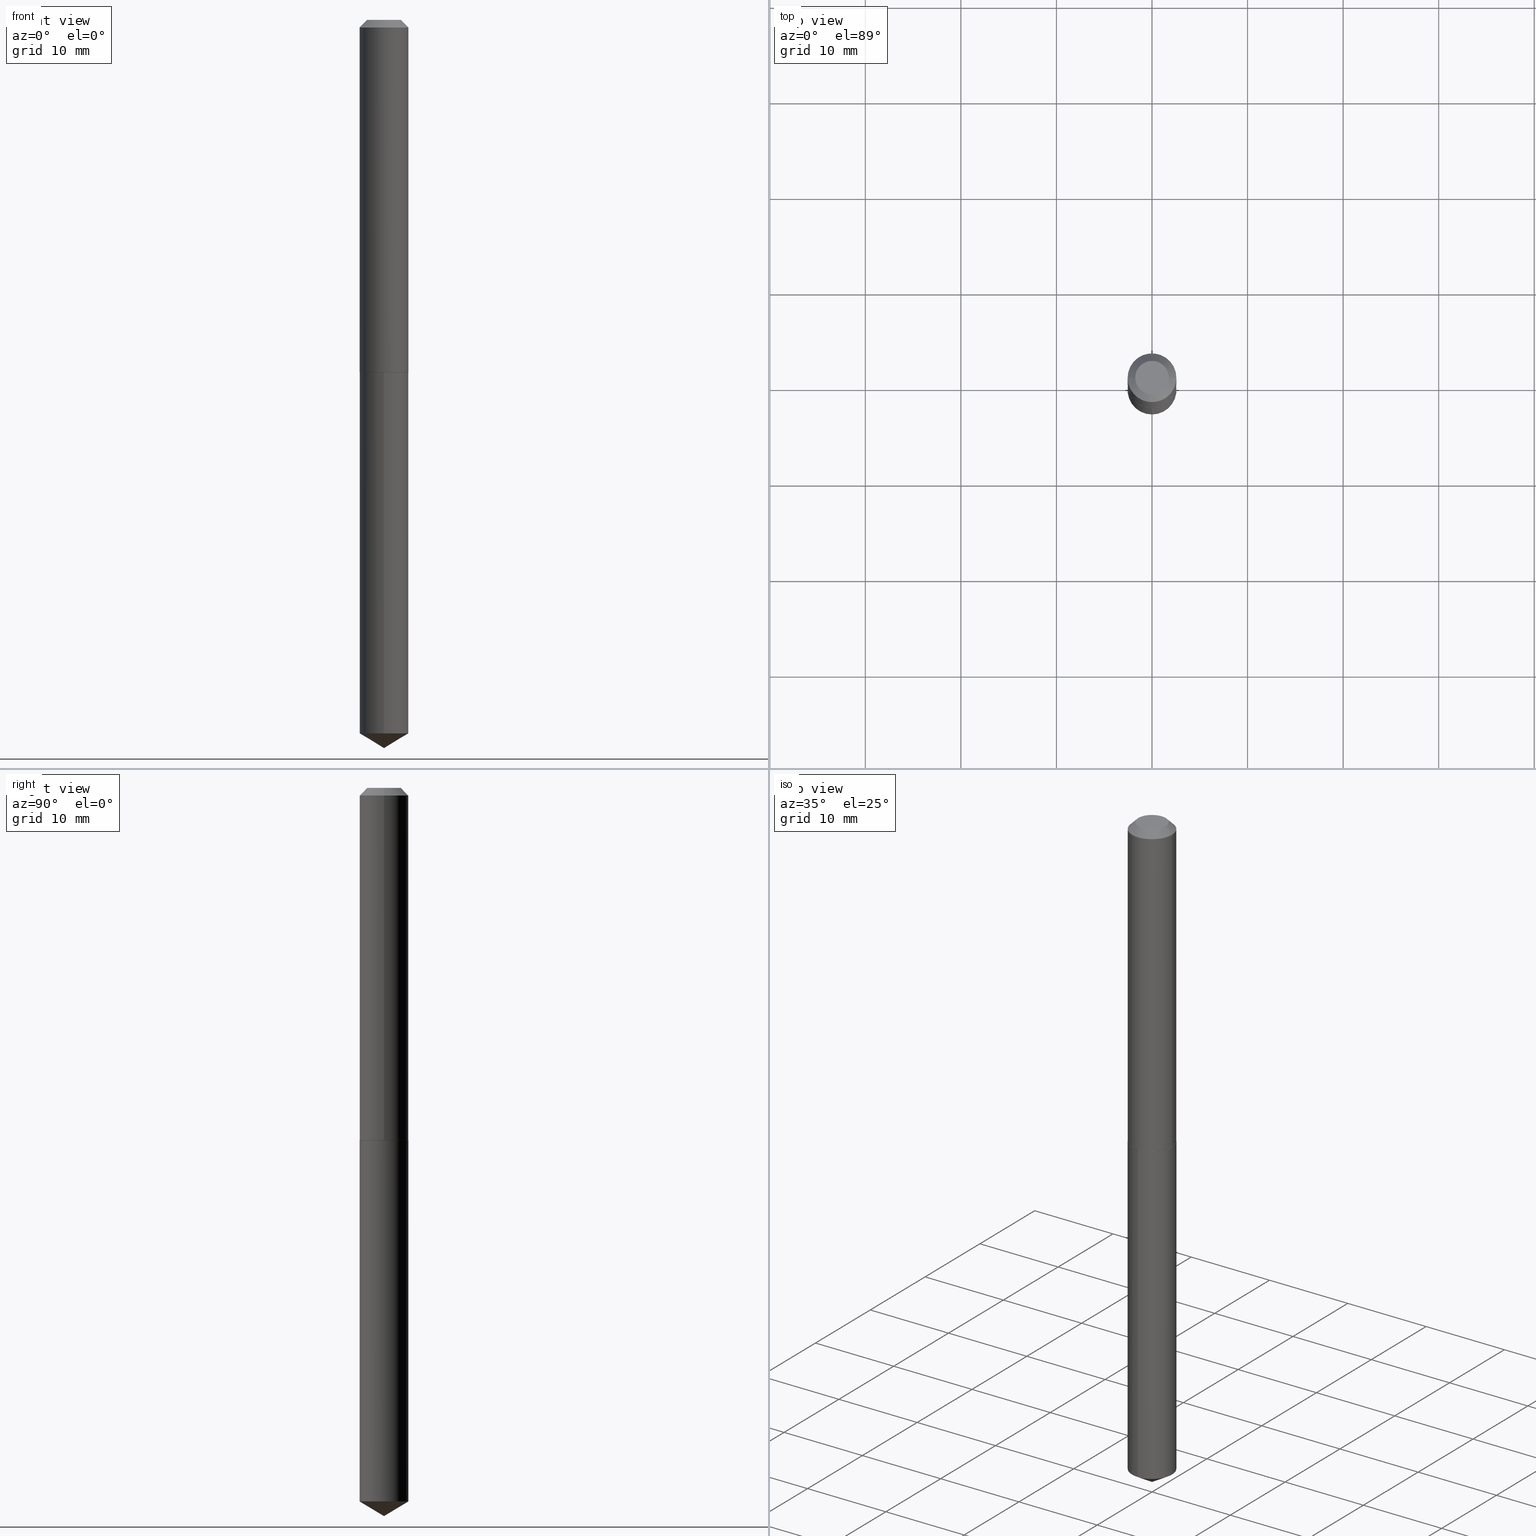
[diagram: canonical four-view strip — front | top / right | iso, engineering-drawing reading convention]
A machine part, canonical four-view strip (front | top / right | iso — engineering-drawing reading convention). The complete STEP part file that produces these views, byte-faithful:
ISO-10303-21;
HEADER;
FILE_DESCRIPTION (( 'STEP AP203' ),
    '1' );
FILE_NAME ('57161.STEP',
    '2024-04-22T23:10:26',
    ( '' ),
    ( '' ),
    'SwSTEP 2.0',
    'SolidWorks 2023',
    '' );
FILE_SCHEMA (( 'CONFIG_CONTROL_DESIGN' ));
ENDSEC;

DATA;
#1 = CARTESIAN_POINT ( 'NONE',  ( 7.642090019328598283E-31, -1.091087918388489651E-16, -0.03125000000000019429 ) ) ;
#2 = ORIENTED_EDGE ( 'NONE', *, *, #60, .F. ) ;
#3 = ADVANCED_FACE ( 'NONE', ( #107 ), #25, .T. ) ;
#4 = DIRECTION ( 'NONE',  ( -2.445453720177075881E-29, 3.491502942865330851E-15, 1.000000000000000000 ) ) ;
#5 = ORIENTED_EDGE ( 'NONE', *, *, #60, .T. ) ;
#6 = UNCERTAINTY_MEASURE_WITH_UNIT (LENGTH_MEASURE( 1.000000000000000082E-05 ), #177, 'distance_accuracy_value', 'NONE');
#7 = VECTOR ( 'NONE', #22, 39.37007874015748143 ) ;
#8 = CARTESIAN_POINT ( 'NONE',  ( 0.1005000000000001587, -5.766181431099454268E-15, -1.450500000000000345 ) ) ;
#9 = ORIENTED_EDGE ( 'NONE', *, *, #220, .T. ) ;
#10 = CARTESIAN_POINT ( 'NONE',  ( 3.547152503371541091E-29, -5.064393681991983801E-15, -1.450500000000000345 ) ) ;
#11 = ADVANCED_FACE ( 'NONE', ( #45 ), #167, .F. ) ;
#12 = ORIENTED_EDGE ( 'NONE', *, *, #103, .F. ) ;
#13 = CARTESIAN_POINT ( 'NONE',  ( 0.1005000000000000060, -7.985888406148880235E-16, -0.03125000000000019429 ) ) ;
#14 = ORIENTED_EDGE ( 'NONE', *, *, #281, .F. ) ;
#15 = PERSON_AND_ORGANIZATION ( #141, #201 ) ;
#16 = DIRECTION ( 'NONE',  ( 2.445453720177075881E-29, -3.491502942865330457E-15, -1.000000000000000000 ) ) ;
#17 = CIRCLE ( 'NONE', #73, 0.1005000000000000060 ) ;
#18 = CC_DESIGN_APPROVAL ( #204, ( #105 ) ) ;
#19 = DIRECTION ( 'NONE',  ( 2.438088387897960049E-29, -3.491481338843145188E-15, -1.000000000000000000 ) ) ;
#20 = DIRECTION ( 'NONE',  ( -0.7071067811862336017, 7.493145998869219778E-15, 0.7071067811868614328 ) ) ;
#21 = ORIENTED_EDGE ( 'NONE', *, *, #182, .T. ) ;
#22 = DIRECTION ( 'NONE',  ( -2.445453720177075881E-29, 3.491502942865330457E-15, 1.000000000000000000 ) ) ;
#23 = ORIENTED_EDGE ( 'NONE', *, *, #274, .F. ) ;
#24 = DIRECTION ( 'NONE',  ( -2.445468806185136597E-29, 3.491481338843145583E-15, 1.000000000000000000 ) ) ;
#25 = CONICAL_SURFACE ( 'NONE', #179, 65.52281426576865897, 1.029744258676656088 ) ;
#26 = CARTESIAN_POINT ( 'NONE',  ( -0.1005000000000001587, -4.350298232553081297E-15, -1.450500000000000345 ) ) ;
#27 = EDGE_CURVE ( 'NONE', #112, #256, #186, .T. ) ;
#28 = CALENDAR_DATE ( 2024, 22, 4 ) ;
#29 = DIRECTION ( 'NONE',  ( 1.000000000000000000, 0.000000000000000000, 0.000000000000000000 ) ) ;
#30 = PERSON_AND_ORGANIZATION_ROLE ( 'classification_officer' ) ;
#31 = EDGE_CURVE ( 'NONE', #172, #35, #47, .T. ) ;
#32 = ADVANCED_FACE ( 'NONE', ( #278 ), #367, .T. ) ;
#33 = CALENDAR_DATE ( 2024, 22, 4 ) ;
#34 = DIRECTION ( 'NONE',  ( 1.000000000000000000, -6.982962677686269077E-15, 0.000000000000000000 ) ) ;
#35 = VERTEX_POINT ( 'NONE', #368 ) ;
#36 = DIRECTION ( 'NONE',  ( -2.445468806185136597E-29, 3.491481338843145583E-15, 1.000000000000000000 ) ) ;
#37 = DIRECTION ( 'NONE',  ( -2.445468806185136877E-29, 3.491481338843145188E-15, 1.000000000000000000 ) ) ;
#38 = CIRCLE ( 'NONE', #338, 0.06925000000000000600 ) ;
#39 = LINE ( 'NONE', #135, #221 ) ;
#40 = ORIENTED_EDGE ( 'NONE', *, *, #195, .F. ) ;
#41 = DIRECTION ( 'NONE',  ( 1.000000000000000000, -6.982962677686266711E-15, 4.876176775795935793E-29 ) ) ;
#42 = ORIENTED_EDGE ( 'NONE', *, *, #374, .T. ) ;
#43 = APPLICATION_CONTEXT ( 'configuration controlled 3d designs of mechanical parts and assemblies' ) ;
#44 = CARTESIAN_POINT ( 'NONE',  ( -8.894132246845359773E-28, 1.269862683009398457E-13, 36.37007874015748143 ) ) ;
#45 = FACE_OUTER_BOUND ( 'NONE', #237, .T. ) ;
#46 = DIRECTION ( 'NONE',  ( 1.000000000000000000, -6.982962677686263555E-15, 0.000000000000000000 ) ) ;
#47 = CIRCLE ( 'NONE', #275, 0.1005000000000001587 ) ;
#48 = LOCAL_TIME ( 19, 10, 26.00000000000000000, #108 ) ;
#49 = EDGE_LOOP ( 'NONE', ( #110, #137 ) ) ;
#50 = CALENDAR_DATE ( 2024, 22, 4 ) ;
#51 = FACE_OUTER_BOUND ( 'NONE', #319, .T. ) ;
#52 = EDGE_LOOP ( 'NONE', ( #170, #376, #116, #5 ) ) ;
#53 = PERSON_AND_ORGANIZATION_ROLE ( 'creator' ) ;
#54 = CARTESIAN_POINT ( 'NONE',  ( 3.547152503371541091E-29, -5.064393681991983801E-15, -1.450500000000000345 ) ) ;
#55 = DATE_TIME_ROLE ( 'creation_date' ) ;
#56 = DIRECTION ( 'NONE',  ( -2.438088387897960049E-29, 3.491481338843145188E-15, 1.000000000000000000 ) ) ;
#57 = ADVANCED_FACE ( 'NONE', ( #106 ), #309, .T. ) ;
#58 = AXIS2_PLACEMENT_3D ( 'NONE', #255, #190, #102 ) ;
#59 = ADVANCED_FACE ( 'NONE', ( #152 ), #235, .T. ) ;
#60 = EDGE_CURVE ( 'NONE', #265, #163, #17, .T. ) ;
#61 = APPROVAL_PERSON_ORGANIZATION ( #117, #204, #205 ) ;
#62 = EDGE_CURVE ( 'NONE', #334, #256, #136, .T. ) ;
#63 = MECHANICAL_CONTEXT ( 'NONE', #43, 'mechanical' ) ;
#64 = CC_DESIGN_PERSON_AND_ORGANIZATION_ASSIGNMENT ( #197, #325, ( #105 ) ) ;
#65 = CIRCLE ( 'NONE', #299, 0.1005000000000000060 ) ;
#66 = CIRCLE ( 'NONE', #304, 0.1000000000000004358 ) ;
#67 = DIRECTION ( 'NONE',  ( -1.000000000000000000, 6.982962677686266711E-15, 0.000000000000000000 ) ) ;
#68 = EDGE_LOOP ( 'NONE', ( #344, #336, #288 ) ) ;
#69 = CARTESIAN_POINT ( 'NONE',  ( 0.1005000000000001587, -5.766181431099454268E-15, -1.450500000000000345 ) ) ;
#70 = VERTEX_POINT ( 'NONE', #187 ) ;
#71 = CARTESIAN_POINT ( 'NONE',  ( 3.548375237774633332E-29, -5.066139422661404516E-15, -1.451000000000000068 ) ) ;
#72 = ORIENTED_EDGE ( 'NONE', *, *, #359, .F. ) ;
#73 = AXIS2_PLACEMENT_3D ( 'NONE', #223, #246, #228 ) ;
#74 = CARTESIAN_POINT ( 'NONE',  ( -0.1005000000000000060, 5.926789572686209720E-16, -0.03125000000000019429 ) ) ;
#75 = ORIENTED_EDGE ( 'NONE', *, *, #103, .T. ) ;
#76 = CALENDAR_DATE ( 2024, 22, 4 ) ;
#77 = CARTESIAN_POINT ( 'NONE',  ( -0.06925000000000000600, 5.381245613491975063E-16, 1.224646799111634847E-19 ) ) ;
#78 = EDGE_LOOP ( 'NONE', ( #86, #373 ) ) ;
#79 = COORDINATED_UNIVERSAL_TIME_OFFSET ( 5, 0, .BEHIND. ) ;
#80 = CARTESIAN_POINT ( 'NONE',  ( 3.548375237774633332E-29, -5.066139422661404516E-15, -1.451000000000000068 ) ) ;
#81 = CARTESIAN_POINT ( 'NONE',  ( 3.548375237774633332E-29, -5.066139422661404516E-15, -1.451000000000000068 ) ) ;
#82 = LINE ( 'NONE', #295, #7 ) ;
#83 = CIRCLE ( 'NONE', #383, 0.1000000000000004358 ) ;
#84 = ORIENTED_EDGE ( 'NONE', *, *, #358, .F. ) ;
#85 = CARTESIAN_POINT ( 'NONE',  ( 7.188710678299985693E-29, -1.026363786589134898E-14, -2.939613507787730562 ) ) ;
#86 = ORIENTED_EDGE ( 'NONE', *, *, #359, .T. ) ;
#87 = ADVANCED_FACE ( 'NONE', ( #130 ), #241, .T. ) ;
#88 = CARTESIAN_POINT ( 'NONE',  ( 3.548375237774633892E-29, -5.066139422661406094E-15, -1.451000000000000512 ) ) ;
#89 = PLANE ( 'NONE',  #215 ) ;
#90 = AXIS2_PLACEMENT_3D ( 'NONE', #315, #56, #267 ) ;
#91 = APPROVAL_PERSON_ORGANIZATION ( #232, #209, #297 ) ;
#92 = PERSON_AND_ORGANIZATION_ROLE ( 'design_owner' ) ;
#93 = APPROVAL_STATUS ( 'not_yet_approved' ) ;
#94 = ADVANCED_FACE ( 'NONE', ( #96 ), #337, .T. ) ;
#95 = APPROVAL ( #93, 'UNSPECIFIED' ) ;
#96 = FACE_OUTER_BOUND ( 'NONE', #366, .T. ) ;
#97 = CIRCLE ( 'NONE', #138, 0.1005000000000000060 ) ;
#98 = CC_DESIGN_APPROVAL ( #95, ( #176 ) ) ;
#99 = DIRECTION ( 'NONE',  ( -2.445468806185136597E-29, 3.491481338843145583E-15, 1.000000000000000000 ) ) ;
#100 = ADVANCED_FACE ( 'NONE', ( #341 ), #332, .T. ) ;
#101 = CARTESIAN_POINT ( 'NONE',  ( -7.017877491074343767E-16, -0.1005000000000050853, -1.450999999999999845 ) ) ;
#102 = DIRECTION ( 'NONE',  ( 1.000000000000000000, -6.982962677686266711E-15, 0.000000000000000000 ) ) ;
#103 = EDGE_CURVE ( 'NONE', #163, #265, #326, .T. ) ;
#104 = DATE_AND_TIME ( #50, #276 ) ;
#105 = PRODUCT_DEFINITION_FORMATION_WITH_SPECIFIED_SOURCE ( 'ANY', '', #214, .NOT_KNOWN. ) ;
#106 = FACE_OUTER_BOUND ( 'NONE', #351, .T. ) ;
#107 = FACE_OUTER_BOUND ( 'NONE', #193, .T. ) ;
#108 = COORDINATED_UNIVERSAL_TIME_OFFSET ( 5, 0, .BEHIND. ) ;
#109 = DIRECTION ( 'NONE',  ( -2.445468806185136597E-29, 3.491481338843145583E-15, 1.000000000000000000 ) ) ;
#110 = ORIENTED_EDGE ( 'NONE', *, *, #381, .F. ) ;
#111 = DIRECTION ( 'NONE',  ( -2.445453720177075881E-29, 3.491502942865330851E-15, 1.000000000000000000 ) ) ;
#112 = VERTEX_POINT ( 'NONE', #308 ) ;
#113 = CALENDAR_DATE ( 2024, 22, 4 ) ;
#114 = DIRECTION ( 'NONE',  ( -2.445468806185136597E-29, 3.491481338843145583E-15, 1.000000000000000000 ) ) ;
#115 = LOCAL_TIME ( 19, 10, 26.00000000000000000, #273 ) ;
#116 = ORIENTED_EDGE ( 'NONE', *, *, #213, .T. ) ;
#117 = PERSON_AND_ORGANIZATION ( #141, #201 ) ;
#118 = DIRECTION ( 'NONE',  ( -6.982962677686265922E-15, -1.000000000000000000, 3.468864327941581987E-15 ) ) ;
#119 = APPROVAL_ROLE ( '' ) ;
#120 = DIRECTION ( 'NONE',  ( -5.985567269335949168E-15, -0.8571673007021112234, 0.5150380749100558209 ) ) ;
#121 = VECTOR ( 'NONE', #375, 39.37007874015748143 ) ;
#122 =( GEOMETRIC_REPRESENTATION_CONTEXT ( 3 ) GLOBAL_UNCERTAINTY_ASSIGNED_CONTEXT ( ( #6 ) ) GLOBAL_UNIT_ASSIGNED_CONTEXT ( ( #177, #212, #150 ) ) REPRESENTATION_CONTEXT ( 'NONE', 'WORKASPACE' ) );
#123 = CC_DESIGN_PERSON_AND_ORGANIZATION_ASSIGNMENT ( #328, #30, ( #176 ) ) ;
#124 = AXIS2_PLACEMENT_3D ( 'NONE', #44, #270, #118 ) ;
#125 = CIRCLE ( 'NONE', #384, 0.1005000000000000060 ) ;
#126 = ORIENTED_EDGE ( 'NONE', *, *, #329, .T. ) ;
#127 = ADVANCED_FACE ( 'NONE', ( #279 ), #331, .T. ) ;
#128 = DIRECTION ( 'NONE',  ( 1.000000000000000000, -6.982962677686269077E-15, 0.000000000000000000 ) ) ;
#129 = VERTEX_POINT ( 'NONE', #306 ) ;
#130 = FACE_OUTER_BOUND ( 'NONE', #284, .T. ) ;
#131 = ORIENTED_EDGE ( 'NONE', *, *, #245, .T. ) ;
#132 = AXIS2_PLACEMENT_3D ( 'NONE', #140, #165, #233 ) ;
#133 = DIRECTION ( 'NONE',  ( -2.445468806185136597E-29, 3.491481338843145583E-15, 1.000000000000000000 ) ) ;
#134 = ORIENTED_EDGE ( 'NONE', *, *, #348, .T. ) ;
#135 = CARTESIAN_POINT ( 'NONE',  ( -0.1005000000000000893, 7.140954494389013210E-16, -4.943529765706185016E-30 ) ) ;
#136 = LINE ( 'NONE', #101, #388 ) ;
#137 = ORIENTED_EDGE ( 'NONE', *, *, #260, .F. ) ;
#138 = AXIS2_PLACEMENT_3D ( 'NONE', #85, #171, #143 ) ;
#139 = PERSON_AND_ORGANIZATION ( #141, #201 ) ;
#140 = CARTESIAN_POINT ( 'NONE',  ( -2.994835545909338814E-48, 4.275831445896991422E-34, 1.224646799147358199E-19 ) ) ;
#141 = PERSON ( 'UNSPECIFIED', 'UNSPECIFIED', 'UNSPECIFIED', ('UNSPECIFIED'), ('UNSPECIFIED'), ('UNSPECIFIED') ) ;
#142 = DIRECTION ( 'NONE',  ( -1.000000000000000000, 6.982962677686265922E-15, -4.876176775795935793E-29 ) ) ;
#143 = DIRECTION ( 'NONE',  ( -6.982962677686265922E-15, -1.000000000000000000, 5.436513420227388995E-15 ) ) ;
#144 = EDGE_LOOP ( 'NONE', ( #146, #229, #75, #155 ) ) ;
#145 = DIRECTION ( 'NONE',  ( 1.000000000000000000, -6.982962677686263555E-15, 0.000000000000000000 ) ) ;
#146 = ORIENTED_EDGE ( 'NONE', *, *, #352, .F. ) ;
#147 = DIRECTION ( 'NONE',  ( -2.445453720177075881E-29, 3.491502942865330851E-15, 1.000000000000000000 ) ) ;
#148 = DATE_TIME_ROLE ( 'classification_date' ) ;
#149 = AXIS2_PLACEMENT_3D ( 'NONE', #305, #133, #219 ) ;
#150 =( NAMED_UNIT ( * ) SI_UNIT ( $, .STERADIAN. ) SOLID_ANGLE_UNIT ( ) );
#151 = CC_DESIGN_DATE_AND_TIME_ASSIGNMENT ( #183, #148, ( #176 ) ) ;
#152 = FACE_OUTER_BOUND ( 'NONE', #52, .T. ) ;
#153 = ORIENTED_EDGE ( 'NONE', *, *, #27, .F. ) ;
#154 = CARTESIAN_POINT ( 'NONE',  ( 3.547152503371541091E-29, -5.064393681991983801E-15, -1.450500000000000345 ) ) ;
#155 = ORIENTED_EDGE ( 'NONE', *, *, #213, .F. ) ;
#156 = CC_DESIGN_PERSON_AND_ORGANIZATION_ASSIGNMENT ( #357, #92, ( #214 ) ) ;
#157 = LINE ( 'NONE', #13, #257 ) ;
#158 = AXIS2_PLACEMENT_3D ( 'NONE', #1, #189, #67 ) ;
#159 = CIRCLE ( 'NONE', #132, 0.06925000000000000600 ) ;
#160 = DIRECTION ( 'NONE',  ( -6.982962677686265922E-15, -1.000000000000000000, 2.718256710113694497E-15 ) ) ;
#161 = DIRECTION ( 'NONE',  ( -2.445453720177075881E-29, 3.491502942865330851E-15, 1.000000000000000000 ) ) ;
#162 = ADVANCED_BREP_SHAPE_REPRESENTATION ( '57161', ( #181, #166, #339 ), #122 ) ;
#163 = VERTEX_POINT ( 'NONE', #365 ) ;
#164 = PERSON_AND_ORGANIZATION_ROLE ( 'creator' ) ;
#165 = DIRECTION ( 'NONE',  ( -2.445468806185136597E-29, 3.491481338843145583E-15, 1.000000000000000000 ) ) ;
#166 = MANIFOLD_SOLID_BREP ( 'Body-Move/Copy2[2]', #389 ) ;
#167 = PLANE ( 'NONE',  #175 ) ;
#168 = AXIS2_PLACEMENT_3D ( 'NONE', #206, #147, #321 ) ;
#169 = DIRECTION ( 'NONE',  ( -6.982962677686265922E-15, -1.000000000000000000, 5.436513420227388995E-15 ) ) ;
#170 = ORIENTED_EDGE ( 'NONE', *, *, #185, .F. ) ;
#171 = DIRECTION ( 'NONE',  ( -2.445453720177075881E-29, 3.491502942865330851E-15, 1.000000000000000000 ) ) ;
#172 = VERTEX_POINT ( 'NONE', #69 ) ;
#173 = CARTESIAN_POINT ( 'NONE',  ( -7.017877491073979905E-16, -0.1005000000000102756, -2.939613507787730118 ) ) ;
#174 = CARTESIAN_POINT ( 'NONE',  ( 3.548375237774633892E-29, -5.066139422661406094E-15, -1.451000000000000512 ) ) ;
#175 = AXIS2_PLACEMENT_3D ( 'NONE', #290, #19, #142 ) ;
#176 = SECURITY_CLASSIFICATION ( '', '', #239 ) ;
#177 =( CONVERSION_BASED_UNIT ( 'INCH', #361 ) LENGTH_UNIT ( ) NAMED_UNIT ( #198 ) );
#178 = PERSON_AND_ORGANIZATION ( #141, #201 ) ;
#179 = AXIS2_PLACEMENT_3D ( 'NONE', #314, #342, #262 ) ;
#180 = AXIS2_PLACEMENT_3D ( 'NONE', #54, #109, #264 ) ;
#181 = MANIFOLD_SOLID_BREP ( 'Body-Move/Copy2[1]', #364 ) ;
#182 = EDGE_CURVE ( 'NONE', #35, #265, #39, .T. ) ;
#183 = DATE_AND_TIME ( #28, #360 ) ;
#184 = DIRECTION ( 'NONE',  ( 0.000000000000000000, 0.000000000000000000, 1.000000000000000000 ) ) ;
#185 = EDGE_CURVE ( 'NONE', #347, #163, #157, .T. ) ;
#186 = CIRCLE ( 'NONE', #243, 0.1005000000000000060 ) ;
#187 = CARTESIAN_POINT ( 'NONE',  ( 0.1000000000000004358, -5.764435690430035131E-15, -1.451000000000000512 ) ) ;
#188 = CC_DESIGN_PERSON_AND_ORGANIZATION_ASSIGNMENT ( #15, #164, ( #242 ) ) ;
#189 = DIRECTION ( 'NONE',  ( 2.445468806185136597E-29, -3.491481338843145583E-15, -1.000000000000000000 ) ) ;
#190 = DIRECTION ( 'NONE',  ( -2.445468806185136597E-29, 3.491481338843145583E-15, 1.000000000000000000 ) ) ;
#191 = ORIENTED_EDGE ( 'NONE', *, *, #195, .T. ) ;
#192 = DIRECTION ( 'NONE',  ( -0.7071067811865453523, 2.468850131082234184E-15, -0.7071067811865496822 ) ) ;
#193 = EDGE_LOOP ( 'NONE', ( #296, #131, #14 ) ) ;
#194 = DIRECTION ( 'NONE',  ( -2.445468806185136597E-29, 3.491481338843145583E-15, 1.000000000000000000 ) ) ;
#195 = EDGE_CURVE ( 'NONE', #70, #172, #285, .T. ) ;
#196 = VERTEX_POINT ( 'NONE', #370 ) ;
#197 = PERSON_AND_ORGANIZATION ( #141, #201 ) ;
#198 = DIMENSIONAL_EXPONENTS ( 1.000000000000000000, 0.000000000000000000, 0.000000000000000000, 0.000000000000000000, 0.000000000000000000, 0.000000000000000000, 0.000000000000000000 ) ;
#199 = DIRECTION ( 'NONE',  ( -6.982962677686265922E-15, -1.000000000000000000, 2.718256710113694497E-15 ) ) ;
#200 = DIRECTION ( 'NONE',  ( -6.982962677686265922E-15, -1.000000000000000000, 2.718256710113694497E-15 ) ) ;
#201 = ORGANIZATION ( 'UNSPECIFIED', 'UNSPECIFIED', '' ) ;
#202 = CARTESIAN_POINT ( 'NONE',  ( 7.336361160531227643E-29, -1.047450882859599098E-14, -3.000000000000000444 ) ) ;
#203 = VERTEX_POINT ( 'NONE', #77 ) ;
#204 = APPROVAL ( #227, 'UNSPECIFIED' ) ;
#205 = APPROVAL_ROLE ( '' ) ;
#206 = CARTESIAN_POINT ( 'NONE',  ( 3.548375237774633332E-29, -5.066139422661404516E-15, -1.451000000000000068 ) ) ;
#207 = ORIENTED_EDGE ( 'NONE', *, *, #62, .F. ) ;
#208 = VECTOR ( 'NONE', #289, 39.37007874015748854 ) ;
#209 = APPROVAL ( #266, 'UNSPECIFIED' ) ;
#210 = APPROVAL_DATE_TIME ( #302, #95 ) ;
#211 = APPLICATION_PROTOCOL_DEFINITION ( 'international standard', 'config_control_design', 1994, #369 ) ;
#212 =( NAMED_UNIT ( * ) PLANE_ANGLE_UNIT ( ) SI_UNIT ( $, .RADIAN. ) );
#213 = EDGE_CURVE ( 'NONE', #203, #265, #253, .T. ) ;
#214 = PRODUCT ( '57161', '57161', '', ( #63 ) ) ;
#215 = AXIS2_PLACEMENT_3D ( 'NONE', #269, #16, #236 ) ;
#216 = COORDINATED_UNIVERSAL_TIME_OFFSET ( 5, 0, .BEHIND. ) ;
#217 = CARTESIAN_POINT ( 'NONE',  ( 0.000000000000000000, 0.000000000000000000, 0.000000000000000000 ) ) ;
#218 = ORIENTED_EDGE ( 'NONE', *, *, #374, .F. ) ;
#219 = DIRECTION ( 'NONE',  ( 1.000000000000000000, -6.982962677686266711E-15, 4.876176775795935793E-29 ) ) ;
#220 = EDGE_CURVE ( 'NONE', #334, #129, #65, .T. ) ;
#221 = VECTOR ( 'NONE', #37, 39.37007874015748143 ) ;
#222 = CARTESIAN_POINT ( 'NONE',  ( 0.000000000000000000, 0.000000000000000000, 0.000000000000000000 ) ) ;
#223 = CARTESIAN_POINT ( 'NONE',  ( 7.642090019328598283E-31, -1.091087918388489651E-16, -0.03125000000000019429 ) ) ;
#224 = ORIENTED_EDGE ( 'NONE', *, *, #182, .F. ) ;
#225 = DIRECTION ( 'NONE',  ( 2.445468806185136597E-29, -3.491481338843145583E-15, -1.000000000000000000 ) ) ;
#226 = AXIS2_PLACEMENT_3D ( 'NONE', #154, #194, #363 ) ;
#227 = APPROVAL_STATUS ( 'not_yet_approved' ) ;
#228 = DIRECTION ( 'NONE',  ( 1.000000000000000000, -6.982962677686266711E-15, 0.000000000000000000 ) ) ;
#229 = ORIENTED_EDGE ( 'NONE', *, *, #185, .T. ) ;
#230 = CARTESIAN_POINT ( 'NONE',  ( -0.1005000000000000060, -1.872655787476513947E-15, -0.03125000000000019429 ) ) ;
#231 = ORIENTED_EDGE ( 'NONE', *, *, #62, .T. ) ;
#232 = PERSON_AND_ORGANIZATION ( #141, #201 ) ;
#233 = DIRECTION ( 'NONE',  ( 1.000000000000000000, -6.982962677686267499E-15, 4.876166693236633478E-29 ) ) ;
#234 = DIRECTION ( 'NONE',  ( -2.445453720177075881E-29, 3.491502942865330851E-15, 1.000000000000000000 ) ) ;
#235 = CONICAL_SURFACE ( 'NONE', #158, 0.1005000000000000060, 0.7853981633974452814 ) ;
#236 = DIRECTION ( 'NONE',  ( 6.982962677686265922E-15, 1.000000000000000000, -3.491502942865330457E-15 ) ) ;
#237 = EDGE_LOOP ( 'NONE', ( #134, #312 ) ) ;
#238 = CARTESIAN_POINT ( 'NONE',  ( 0.1005000000000000893, -7.017877491074704671E-16, 4.900557659674919900E-30 ) ) ;
#239 = SECURITY_CLASSIFICATION_LEVEL ( 'unclassified' ) ;
#240 = LINE ( 'NONE', #202, #371 ) ;
#241 = CONICAL_SURFACE ( 'NONE', #226, 0.1005000000000001587, 0.7853981633970044118 ) ;
#242 = PRODUCT_DEFINITION ( 'UNKNOWN', '', #105, #249 ) ;
#243 = AXIS2_PLACEMENT_3D ( 'NONE', #81, #234, #200 ) ;
#244 = LOCAL_TIME ( 19, 10, 26.00000000000000000, #349 ) ;
#245 = EDGE_CURVE ( 'NONE', #362, #334, #240, .T. ) ;
#246 = DIRECTION ( 'NONE',  ( -2.445468806185136597E-29, 3.491481338843145583E-15, 1.000000000000000000 ) ) ;
#247 = DIRECTION ( 'NONE',  ( -1.000000000000000000, 6.982962677686266711E-15, 0.000000000000000000 ) ) ;
#248 = AXIS2_PLACEMENT_3D ( 'NONE', #10, #99, #128 ) ;
#249 = DESIGN_CONTEXT ( 'detailed design', #369, 'design' ) ;
#250 = DIRECTION ( 'NONE',  ( 0.7071067811862336017, -2.468850131078969088E-15, 0.7071067811868614328 ) ) ;
#251 = ADVANCED_FACE ( 'NONE', ( #377 ), #350, .F. ) ;
#252 = ORIENTED_EDGE ( 'NONE', *, *, #381, .T. ) ;
#253 = LINE ( 'NONE', #74, #323 ) ;
#254 = PRODUCT_DEFINITION_SHAPE ( 'NONE', 'NONE',  #242 ) ;
#255 = CARTESIAN_POINT ( 'NONE',  ( 7.642090019328598283E-31, -1.091087918388489651E-16, -0.03125000000000019429 ) ) ;
#256 = VERTEX_POINT ( 'NONE', #293 ) ;
#257 = VECTOR ( 'NONE', #282, 39.37007874015748143 ) ;
#258 = AXIS2_PLACEMENT_3D ( 'NONE', #71, #4, #160 ) ;
#259 = CC_DESIGN_APPROVAL ( #209, ( #242 ) ) ;
#260 = EDGE_CURVE ( 'NONE', #196, #70, #83, .T. ) ;
#261 = LINE ( 'NONE', #318, #208 ) ;
#262 = DIRECTION ( 'NONE',  ( -6.982962677686265922E-15, -1.000000000000000000, 3.468864327941581987E-15 ) ) ;
#263 = ADVANCED_FACE ( 'NONE', ( #354 ), #89, .F. ) ;
#264 = DIRECTION ( 'NONE',  ( 1.000000000000000000, -6.982962677686269077E-15, 0.000000000000000000 ) ) ;
#265 = VERTEX_POINT ( 'NONE', #230 ) ;
#266 = APPROVAL_STATUS ( 'not_yet_approved' ) ;
#267 = DIRECTION ( 'NONE',  ( 1.000000000000000000, -6.982962677686265922E-15, 4.876176775795935793E-29 ) ) ;
#268 = ORIENTED_EDGE ( 'NONE', *, *, #274, .T. ) ;
#269 = CARTESIAN_POINT ( 'NONE',  ( 3.548375237774633332E-29, -5.066139422661404516E-15, -1.451000000000000068 ) ) ;
#270 = DIRECTION ( 'NONE',  ( -2.445453720177075881E-29, 3.491502942865330851E-15, 1.000000000000000000 ) ) ;
#271 = EDGE_CURVE ( 'NONE', #362, #129, #261, .T. ) ;
#272 = APPLICATION_PROTOCOL_DEFINITION ( 'international standard', 'config_control_design', 1994, #43 ) ;
#273 = COORDINATED_UNIVERSAL_TIME_OFFSET ( 5, 0, .BEHIND. ) ;
#274 = EDGE_CURVE ( 'NONE', #196, #35, #300, .T. ) ;
#275 = AXIS2_PLACEMENT_3D ( 'NONE', #316, #287, #34 ) ;
#276 = LOCAL_TIME ( 19, 10, 26.00000000000000000, #79 ) ;
#277 = EDGE_LOOP ( 'NONE', ( #218, #286, #231, #153 ) ) ;
#278 = FACE_OUTER_BOUND ( 'NONE', #277, .T. ) ;
#279 = FACE_OUTER_BOUND ( 'NONE', #144, .T. ) ;
#280 = EDGE_LOOP ( 'NONE', ( #224, #390, #126, #2 ) ) ;
#281 = EDGE_CURVE ( 'NONE', #129, #334, #97, .T. ) ;
#282 = DIRECTION ( 'NONE',  ( 0.7071067811865453523, -7.319954787623248157E-15, -0.7071067811865496822 ) ) ;
#283 = AXIS2_PLACEMENT_3D ( 'NONE', #222, #36, #41 ) ;
#284 = EDGE_LOOP ( 'NONE', ( #252, #268, #310, #40 ) ) ;
#285 = LINE ( 'NONE', #8, #317 ) ;
#286 = ORIENTED_EDGE ( 'NONE', *, *, #281, .T. ) ;
#287 = DIRECTION ( 'NONE',  ( -2.445468806185136597E-29, 3.491481338843145583E-15, 1.000000000000000000 ) ) ;
#288 = ORIENTED_EDGE ( 'NONE', *, *, #220, .F. ) ;
#289 = DIRECTION ( 'NONE',  ( 6.090539988449786324E-15, 0.8571673007021148871, 0.5150380749100498257 ) ) ;
#290 = CARTESIAN_POINT ( 'NONE',  ( -1.497417772954669407E-48, 2.137915722948495711E-34, 6.123233995736790996E-20 ) ) ;
#291 = CONICAL_SURFACE ( 'NONE', #124, 65.52281426576865897, 1.029744258676656088 ) ;
#292 = ADVANCED_FACE ( 'NONE', ( #380 ), #291, .T. ) ;
#293 = CARTESIAN_POINT ( 'NONE',  ( -7.017877491074343767E-16, -0.1005000000000050853, -1.450999999999999845 ) ) ;
#294 = ORIENTED_EDGE ( 'NONE', *, *, #329, .F. ) ;
#295 = CARTESIAN_POINT ( 'NONE',  ( 7.140954494389360309E-16, 0.1004999999999949406, -1.451000000000000512 ) ) ;
#296 = ORIENTED_EDGE ( 'NONE', *, *, #271, .F. ) ;
#297 = APPROVAL_ROLE ( '' ) ;
#298 = DIRECTION ( 'NONE',  ( -2.445468806185136597E-29, 3.491481338843145583E-15, 1.000000000000000000 ) ) ;
#299 = AXIS2_PLACEMENT_3D ( 'NONE', #311, #161, #169 ) ;
#300 = LINE ( 'NONE', #26, #303 ) ;
#301 = SHAPE_DEFINITION_REPRESENTATION ( #254, #162 ) ;
#302 = DATE_AND_TIME ( #33, #115 ) ;
#303 = VECTOR ( 'NONE', #20, 39.37007874015748143 ) ;
#304 = AXIS2_PLACEMENT_3D ( 'NONE', #88, #24, #145 ) ;
#305 = CARTESIAN_POINT ( 'NONE',  ( 0.000000000000000000, 0.000000000000000000, 0.000000000000000000 ) ) ;
#306 = CARTESIAN_POINT ( 'NONE',  ( 7.140954494389726143E-16, 0.1004999999999897503, -2.939613507787731006 ) ) ;
#307 = ADVANCED_FACE ( 'NONE', ( #51 ), #385, .T. ) ;
#308 = CARTESIAN_POINT ( 'NONE',  ( 7.140954494389727130E-16, 0.1004999999999949406, -1.451000000000000512 ) ) ;
#309 = CONICAL_SURFACE ( 'NONE', #248, 0.1005000000000001587, 0.7853981633970044118 ) ;
#310 = ORIENTED_EDGE ( 'NONE', *, *, #31, .F. ) ;
#311 = CARTESIAN_POINT ( 'NONE',  ( 7.188710678299985693E-29, -1.026363786589134898E-14, -2.939613507787730562 ) ) ;
#312 = ORIENTED_EDGE ( 'NONE', *, *, #352, .T. ) ;
#313 = CARTESIAN_POINT ( 'NONE',  ( 0.06925000000000000600, -6.368391634802832925E-16, 1.224646799186528244E-19 ) ) ;
#314 = CARTESIAN_POINT ( 'NONE',  ( -8.894132246845359773E-28, 1.269862683009398457E-13, 36.37007874015748143 ) ) ;
#315 = CARTESIAN_POINT ( 'NONE',  ( 7.803906742904512557E-30, -9.030050861468245979E-15, -1.451000000000000512 ) ) ;
#316 = CARTESIAN_POINT ( 'NONE',  ( 3.547152503371541091E-29, -5.064393681991983801E-15, -1.450500000000000345 ) ) ;
#317 = VECTOR ( 'NONE', #250, 39.37007874015748143 ) ;
#318 = CARTESIAN_POINT ( 'NONE',  ( 7.336405324021993633E-29, -1.047444613372361077E-14, -3.000000000000000444 ) ) ;
#319 = EDGE_LOOP ( 'NONE', ( #9, #42, #72, #207 ) ) ;
#320 = APPROVAL_DATE_TIME ( #379, #204 ) ;
#321 = DIRECTION ( 'NONE',  ( -6.982962677686265922E-15, -1.000000000000000000, 2.718256710113694497E-15 ) ) ;
#322 =( LENGTH_UNIT ( ) NAMED_UNIT ( * ) SI_UNIT ( $, .METRE. ) );
#323 = VECTOR ( 'NONE', #192, 39.37007874015748143 ) ;
#324 = CC_DESIGN_SECURITY_CLASSIFICATION ( #176, ( #105 ) ) ;
#325 = PERSON_AND_ORGANIZATION_ROLE ( 'design_supplier' ) ;
#326 = CIRCLE ( 'NONE', #58, 0.1005000000000000060 ) ;
#327 = APPROVAL_PERSON_ORGANIZATION ( #178, #95, #119 ) ;
#328 = PERSON_AND_ORGANIZATION ( #141, #201 ) ;
#329 = EDGE_CURVE ( 'NONE', #172, #163, #355, .T. ) ;
#330 = CC_DESIGN_DATE_AND_TIME_ASSIGNMENT ( #104, #55, ( #242 ) ) ;
#331 = CONICAL_SURFACE ( 'NONE', #356, 0.1005000000000000060, 0.7853981633974452814 ) ;
#332 = CYLINDRICAL_SURFACE ( 'NONE', #283, 0.1005000000000000893 ) ;
#333 = CARTESIAN_POINT ( 'NONE',  ( 7.642090019328598283E-31, -1.091087918388489651E-16, -0.03125000000000019429 ) ) ;
#334 = VERTEX_POINT ( 'NONE', #173 ) ;
#335 = DIRECTION ( 'NONE',  ( -2.445453720177075881E-29, 3.491502942865330457E-15, 1.000000000000000000 ) ) ;
#336 = ORIENTED_EDGE ( 'NONE', *, *, #271, .T. ) ;
#337 = CYLINDRICAL_SURFACE ( 'NONE', #149, 0.1005000000000000893 ) ;
#338 = AXIS2_PLACEMENT_3D ( 'NONE', #386, #298, #343 ) ;
#339 = AXIS2_PLACEMENT_3D ( 'NONE', #217, #184, #29 ) ;
#340 = CC_DESIGN_PERSON_AND_ORGANIZATION_ASSIGNMENT ( #139, #53, ( #105 ) ) ;
#341 = FACE_OUTER_BOUND ( 'NONE', #280, .T. ) ;
#342 = DIRECTION ( 'NONE',  ( -2.445453720177075881E-29, 3.491502942865330851E-15, 1.000000000000000000 ) ) ;
#343 = DIRECTION ( 'NONE',  ( 1.000000000000000000, -6.982962677686267499E-15, 4.876166693236633478E-29 ) ) ;
#344 = ORIENTED_EDGE ( 'NONE', *, *, #245, .F. ) ;
#345 = DATE_AND_TIME ( #113, #244 ) ;
#346 = CARTESIAN_POINT ( 'NONE',  ( 7.336361160531227643E-29, -1.047450882859599255E-14, -3.000000000000000444 ) ) ;
#347 = VERTEX_POINT ( 'NONE', #313 ) ;
#348 = EDGE_CURVE ( 'NONE', #203, #347, #38, .T. ) ;
#349 = COORDINATED_UNIVERSAL_TIME_OFFSET ( 5, 0, .BEHIND. ) ;
#350 = PLANE ( 'NONE',  #90 ) ;
#351 = EDGE_LOOP ( 'NONE', ( #23, #378, #191, #84 ) ) ;
#352 = EDGE_CURVE ( 'NONE', #347, #203, #159, .T. ) ;
#353 = APPROVAL_DATE_TIME ( #345, #209 ) ;
#354 = FACE_OUTER_BOUND ( 'NONE', #78, .T. ) ;
#355 = LINE ( 'NONE', #238, #121 ) ;
#356 = AXIS2_PLACEMENT_3D ( 'NONE', #333, #225, #247 ) ;
#357 = PERSON_AND_ORGANIZATION ( #141, #201 ) ;
#358 = EDGE_CURVE ( 'NONE', #35, #172, #372, .T. ) ;
#359 = EDGE_CURVE ( 'NONE', #256, #112, #125, .T. ) ;
#360 = LOCAL_TIME ( 19, 10, 26.00000000000000000, #216 ) ;
#361 = LENGTH_MEASURE_WITH_UNIT ( LENGTH_MEASURE( 0.02539999999999999897 ), #322 );
#362 = VERTEX_POINT ( 'NONE', #346 ) ;
#363 = DIRECTION ( 'NONE',  ( 1.000000000000000000, -6.982962677686269077E-15, 0.000000000000000000 ) ) ;
#364 = CLOSED_SHELL ( 'NONE', ( #307, #292, #3, #32, #263 ) ) ;
#365 = CARTESIAN_POINT ( 'NONE',  ( 0.1005000000000000060, -8.108965409463188774E-16, -0.03125000000000019429 ) ) ;
#366 = EDGE_LOOP ( 'NONE', ( #382, #21, #12, #294 ) ) ;
#367 = CYLINDRICAL_SURFACE ( 'NONE', #258, 0.1005000000000000060 ) ;
#368 = CARTESIAN_POINT ( 'NONE',  ( -0.1005000000000001587, -4.350298232553081297E-15, -1.450500000000000345 ) ) ;
#369 = APPLICATION_CONTEXT ( 'configuration controlled 3d designs of mechanical parts and assemblies' ) ;
#370 = CARTESIAN_POINT ( 'NONE',  ( -0.1000000000000004358, -4.352947459727191709E-15, -1.451000000000000512 ) ) ;
#371 = VECTOR ( 'NONE', #120, 39.37007874015748143 ) ;
#372 = CIRCLE ( 'NONE', #180, 0.1005000000000001587 ) ;
#373 = ORIENTED_EDGE ( 'NONE', *, *, #27, .T. ) ;
#374 = EDGE_CURVE ( 'NONE', #129, #112, #82, .T. ) ;
#375 = DIRECTION ( 'NONE',  ( -2.445468806185136877E-29, 3.491481338843145188E-15, 1.000000000000000000 ) ) ;
#376 = ORIENTED_EDGE ( 'NONE', *, *, #348, .F. ) ;
#377 = FACE_OUTER_BOUND ( 'NONE', #49, .T. ) ;
#378 = ORIENTED_EDGE ( 'NONE', *, *, #260, .T. ) ;
#379 = DATE_AND_TIME ( #76, #48 ) ;
#380 = FACE_OUTER_BOUND ( 'NONE', #68, .T. ) ;
#381 = EDGE_CURVE ( 'NONE', #70, #196, #66, .T. ) ;
#382 = ORIENTED_EDGE ( 'NONE', *, *, #31, .T. ) ;
#383 = AXIS2_PLACEMENT_3D ( 'NONE', #174, #114, #46 ) ;
#384 = AXIS2_PLACEMENT_3D ( 'NONE', #80, #111, #199 ) ;
#385 = CYLINDRICAL_SURFACE ( 'NONE', #168, 0.1005000000000000060 ) ;
#386 = CARTESIAN_POINT ( 'NONE',  ( -2.994835545909338814E-48, 4.275831445896991422E-34, 1.224646799147358199E-19 ) ) ;
#387 = PRODUCT_RELATED_PRODUCT_CATEGORY ( 'detail', '', ( #214 ) ) ;
#388 = VECTOR ( 'NONE', #335, 39.37007874015748143 ) ;
#389 = CLOSED_SHELL ( 'NONE', ( #127, #94, #87, #251, #57, #100, #59, #11 ) ) ;
#390 = ORIENTED_EDGE ( 'NONE', *, *, #358, .T. ) ;
ENDSEC;
END-ISO-10303-21;
